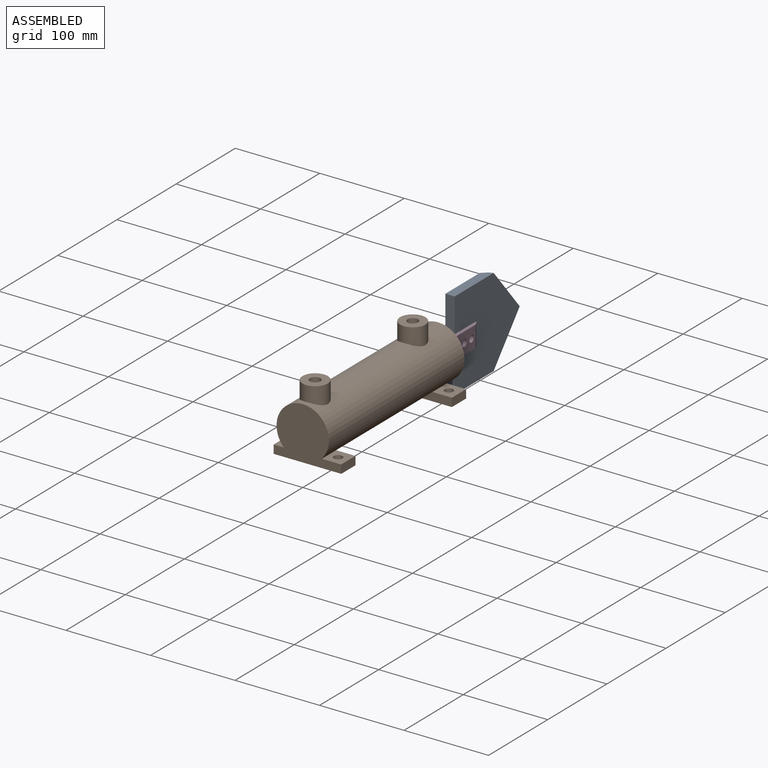
[diagram: assembled view]
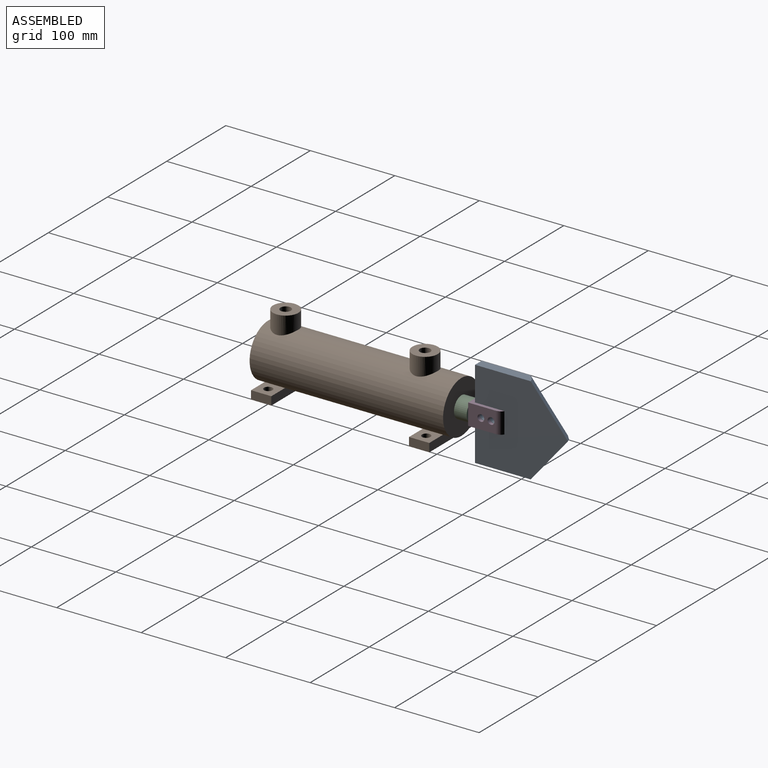
[diagram: assembled view, second angle]
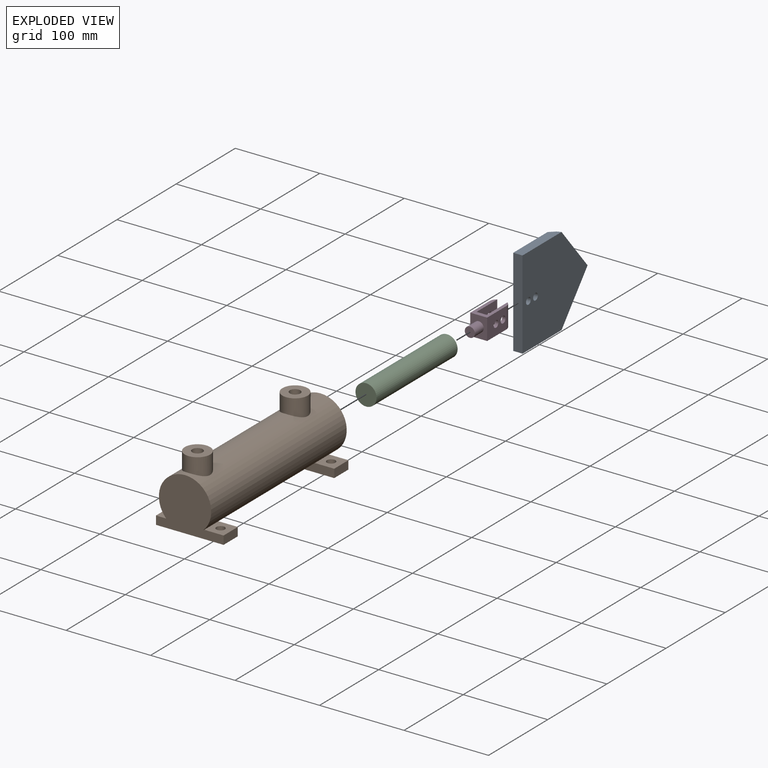
[diagram: exploded view]
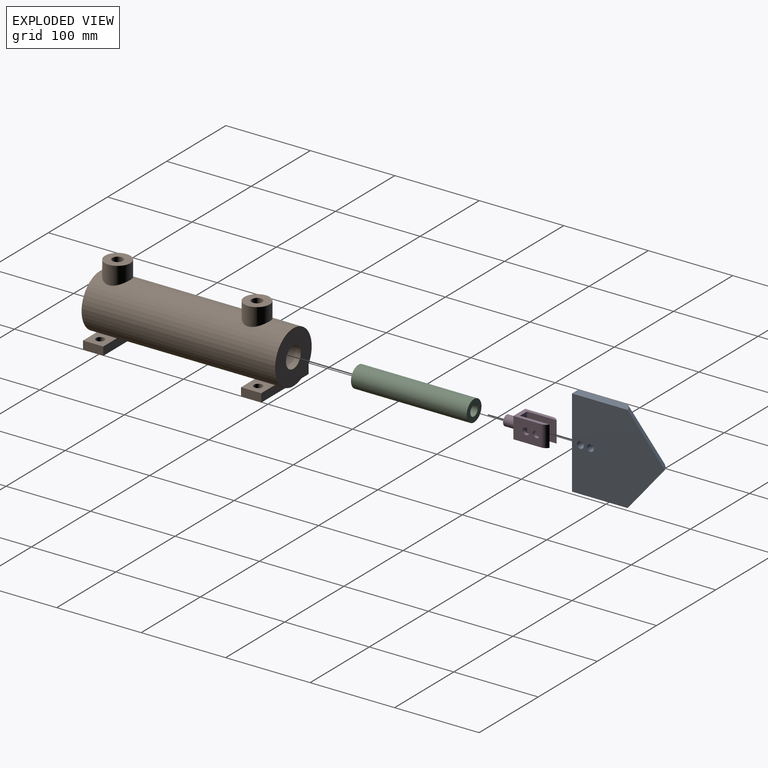
[diagram: exploded view, second angle]
ASSEMBLY  parts=4 mates=3
PART A: 11 faces, bbox 105x11x110 mm
  f0: plane 65.92x11mm, normal (1,0,0), area 689.5mm2, adj f1,f3,f4,f8,f10
  f1: plane 105x11mm, normal (0,0,1), area 1155mm2, adj f0,f2,f3,f4
  f2: plane 65.92x11mm, normal (-1,0,0), area 689.5mm2, adj f1,f3,f4,f7,f9
  f3: plane 105x102.17mm, normal (0,-1,0), area 8314.3mm2, adj f0,f1,f2,f5,f6,f7,f8
  f4: plane 109.97x105mm, normal (0,1,0), area 9133.7mm2, adj f0,f1,f2,f5,f6,f9,f10
  f5: cylinder r=4mm len=11mm, axis (0,1,0), area 276.5mm2, adj f3,f4
  f6: cylinder r=4mm len=11mm, axis (0,1,0), area 276.5mm2, adj f3,f4
  f7: plane 52.5x50.01mm, normal (-0.53,-0.57,-0.63), area 545.6mm2, adj f2,f3,f8,f9
  f8: plane 52.5x50.01mm, normal (0.53,-0.57,-0.63), area 545.6mm2, adj f0,f3,f7,f10
  f9: plane 52.5x45.9mm, normal (-0.61,-0.3,-0.73), area 321.9mm2, adj f2,f4,f7,f10
  f10: plane 52.5x45.9mm, normal (0.61,-0.3,-0.73), area 321.9mm2, adj f0,f4,f8,f9
PART B: 34 faces, bbox 80x229x85 mm
  f0: cylinder r=12.5mm len=210.5mm, axis (0,-1,0), area 16312.7mm2, adj f1,f2,f3,f28,f29,f30,f32,f33
  f1: cone r=0mm half-angle=59deg, axis (0,0,1), area 0mm2, adj f0,f3
  f2: cone r=0mm half-angle=59deg, axis (0,0,1), area 0mm2, adj f0,f3
  f3: cylinder r=6.25mm len=38mm, axis (0,0,-1), area 1464.7mm2, adj f0,f1,f2,f4
  f4: plane 30x30mm, normal (0,0,1), area 584.1mm2, adj f3,f5
  f5: cylinder r=15mm len=30mm, axis (0,0,-1), area 1875.9mm2, adj f4,f6
  f6: cylinder r=31mm len=229mm, axis (0,-1,0), area 41427.2mm2, adj f5,f7,f9,f15,f16,f22,f23,f24
  f7: cylinder r=15mm len=30mm, axis (0,0,-1), area 1875.9mm2, adj f6,f8
  f8: plane 30x30mm, normal (0,0,1), area 584.1mm2, adj f7,f30
  f9: plane 80x10mm, normal (0,1,0), area 685.5mm2, adj f6,f10,f11,f14,f15,f27
  f10: plane 24x10mm, normal (-1,0,0), area 240mm2, adj f9,f11,f26,f27
  f11: plane 80x24mm, normal (0,0,-1), area 1762.9mm2, adj f9,f10,f12,f13,f14,f26
  f12: cylinder r=5mm len=10mm, axis (0,0,-1), area 314.2mm2, adj f11,f27
  f13: cylinder r=5mm len=10mm, axis (0,0,-1), area 314.2mm2, adj f11,f15
  f14: plane 24x10mm, normal (1,0,0), area 240mm2, adj f9,f11,f15,f26
  f15: plane 24x23.12mm, normal (0,0,1), area 476.3mm2, adj f6,f9,f13,f14,f26
  f16: plane 24x23.12mm, normal (0,0,1), area 476.3mm2, adj f6,f17,f21,f23,f25
  f17: plane 24x10mm, normal (1,0,0), area 240mm2, adj f16,f18,f23,f25
  f18: plane 80x24mm, normal (0,0,-1), area 1762.9mm2, adj f17,f19,f20,f21,f23,f25
  f19: plane 24x10mm, normal (-1,0,0), area 240mm2, adj f18,f23,f24,f25
  f20: cylinder r=5mm len=10mm, axis (0,0,-1), area 314.2mm2, adj f18,f24
  f21: cylinder r=5mm len=10mm, axis (0,0,-1), area 314.2mm2, adj f16,f18
  f22: plane 62x62mm, normal (0,-1,0), area 3019.1mm2, adj f6
  f23: plane 80x10mm, normal (0,-1,0), area 685.5mm2, adj f6,f16,f17,f18,f19,f24
  f24: plane 24x23.12mm, normal (0,0,1), area 476.3mm2, adj f6,f19,f20,f23,f25
  f25: plane 80x10mm, normal (0,1,0), area 685.5mm2, adj f6,f16,f17,f18,f19,f24
  f26: plane 80x10mm, normal (0,-1,0), area 685.5mm2, adj f6,f10,f11,f14,f15,f27
  f27: plane 24x23.12mm, normal (0,0,1), area 476.3mm2, adj f6,f9,f10,f12,f26
  f28: cone r=0mm half-angle=59deg, axis (0,0,1), area 0mm2, adj f0,f30
  f29: cone r=0mm half-angle=59deg, axis (0,0,1), area 0mm2, adj f0,f30
  f30: cylinder r=6.25mm len=38mm, axis (0,0,-1), area 1478.4mm2, adj f0,f8,f28,f29,f31,f32
  f31: cone r=0mm half-angle=59deg, axis (0,0,1), area 36.1mm2, adj f30,f32
  f32: plane 25x23.61mm, normal (0,1,0), area 463.2mm2, adj f0,f30,f31
  f33: plane 62x62mm, normal (0,1,0), area 2528.2mm2, adj f0,f6
PART C: 5 faces, bbox 25x137x25 mm
  f0: cylinder r=12.5mm len=137mm, axis (0,-1,0), area 10760mm2, adj f1,f2
  f1: plane 25x25mm, normal (0,1,0), area 490.9mm2, adj f0
  f2: plane 25x25mm, normal (0,-1,0), area 368.2mm2, adj f0,f3
  f3: cylinder r=6.25mm len=15mm, axis (0,-1,0), area 589mm2, adj f2,f4
  f4: plane 12.5x12.5mm, normal (0,-1,0), area 122.7mm2, adj f3
PART D: 16 faces, bbox 20x25x55 mm
  f0: plane 40x20mm, normal (0,-1,0), area 362.2mm2, adj f4,f5,f6,f7,f8,f9,f10,f11
  f1: plane 40x20mm, normal (0,1,0), area 362.2mm2, adj f4,f5,f6,f7,f8,f9,f10,f11
  f2: plane 12x12mm, normal (0,0,-1), area 113.1mm2, adj f3
  f3: cylinder r=6mm len=15mm, axis (0,0,-1), area 565.5mm2, adj f2,f4
  f4: plane 25x20mm, normal (0,0,-1), area 386.9mm2, adj f0,f1,f3,f5,f6
  f5: plane 32.52x25mm, normal (1,0,0), area 712.4mm2, adj f0,f1,f4,f10,f12,f13
  f6: plane 32.52x25mm, normal (-1,0,0), area 712.4mm2, adj f0,f1,f4,f11,f14,f15
  f7: plane 35x25mm, normal (1,0,0), area 774.5mm2, adj f0,f1,f9,f11,f14,f15
  f8: plane 35x25mm, normal (-1,0,0), area 774.5mm2, adj f0,f1,f9,f10,f12,f13
  f9: plane 25x12mm, normal (0,0,1), area 300mm2, adj f0,f1,f7,f8
  f10: cylinder r=9mm len=25mm, axis (0,-1,0), area 220.9mm2, adj f0,f1,f5,f8
  f11: cylinder r=9mm len=25mm, axis (0,-1,0), area 220.9mm2, adj f0,f1,f6,f7
  f12: cylinder r=4mm len=8mm, axis (1,0,0), area 100.5mm2, adj f5,f8
  f13: cylinder r=4mm len=8mm, axis (1,0,0), area 100.5mm2, adj f5,f8
  f14: cylinder r=4mm len=8mm, axis (1,0,0), area 100.5mm2, adj f6,f7
  f15: cylinder r=4mm len=8mm, axis (1,0,0), area 100.5mm2, adj f6,f7
PLACE A rot(axis=(0.58,0.58,-0.58),120deg) t=(5.5,359,0)mm
PLACE B at identity
PLACE C rot(axis=(1,0,0),180deg) t=(0,244,0)mm
PLACE D rot(axis=(-1,0,0),90deg) t=(0,244,0)mm
MATE fastened A.f1 <-> D.f3  axis (0,-1,0) through (0,249,0)mm
MATE slider C.f0 <-> B.f0  axis (0,-1,0) through (0,107,0)mm
MATE fastened D.f3 <-> C.f3  axis (0,-1,0) through (0,236.5,0)mm
